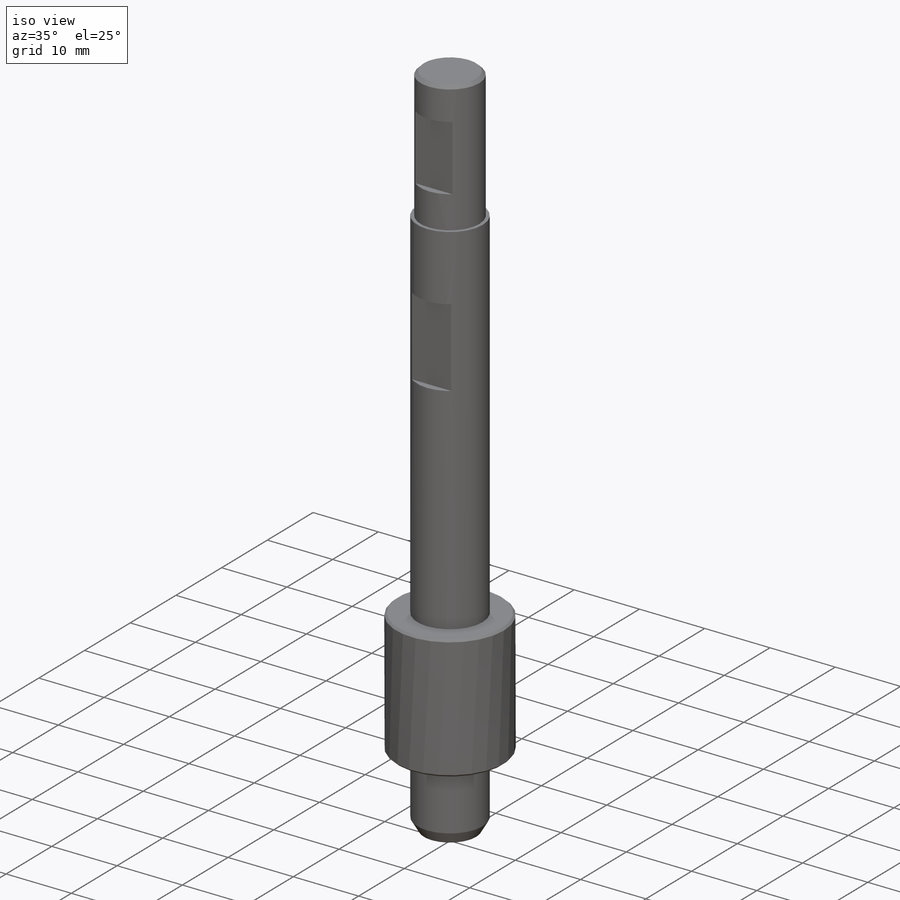
[diagram: iso view]
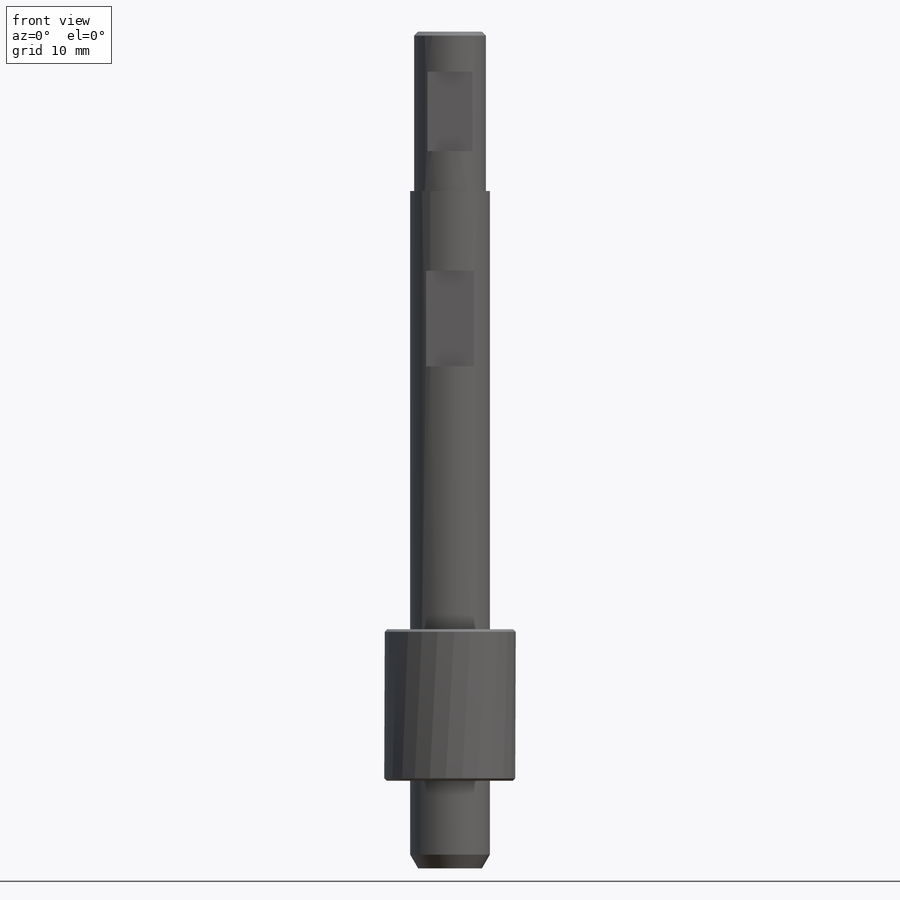
[diagram: front view]
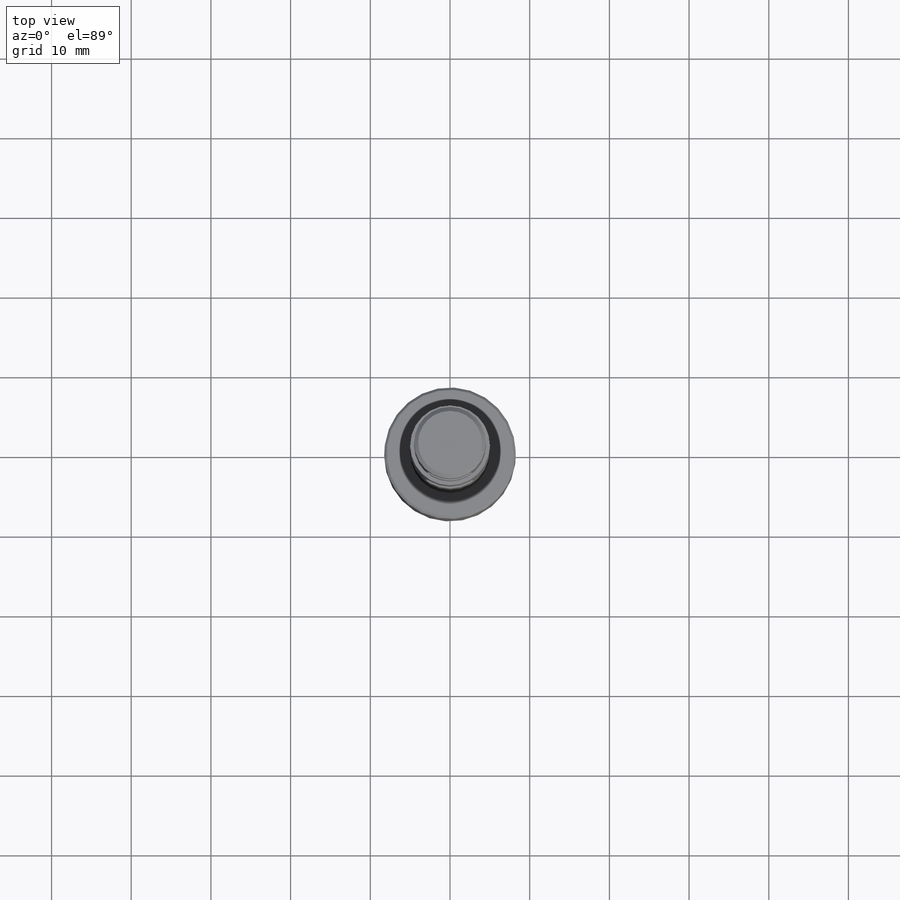
[diagram: top view]
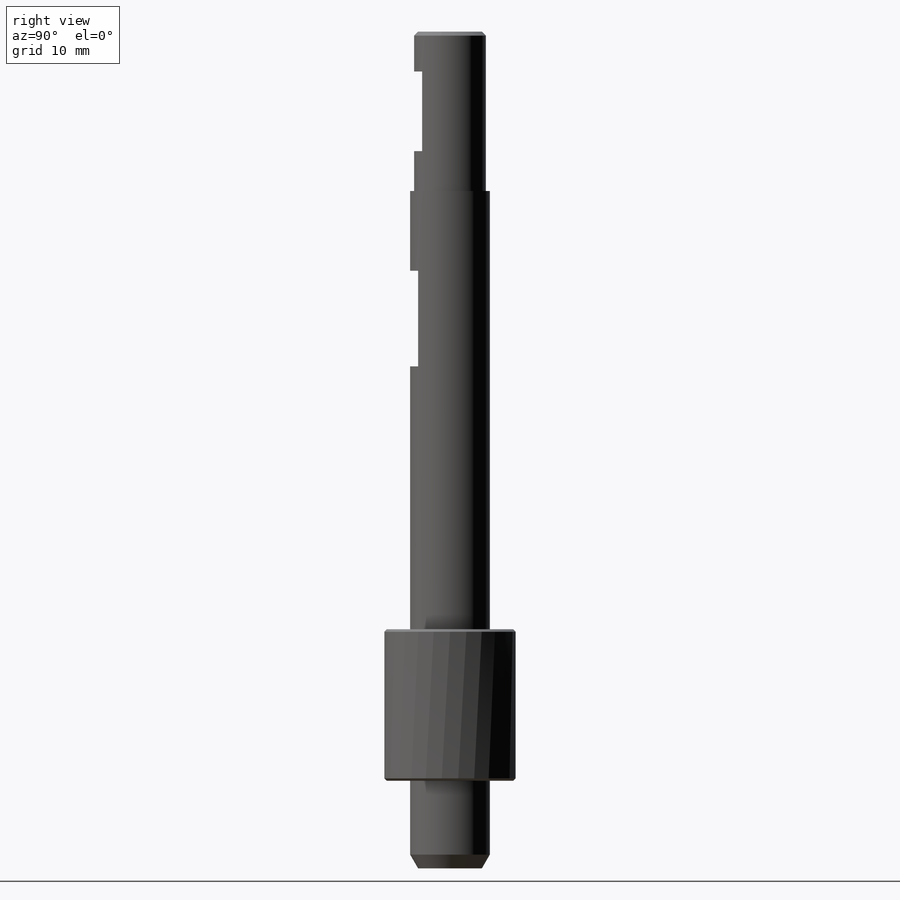
[diagram: right view]
SOLIDWORKS PART (.sldprt)
format: sldprt  version: not decoded by parser v0  size: 177,664 bytes
history: native  units: mm
features: plane x4, sketch x4, chamfer x3, cut_extrude x3, material x1, revolve x1 (+13 scaffold rows collapsed)
feature tree (29):
  scaffold x13  (default folders/planes/origin — collapsed)
  material  "1.0501 (C35)"
  plane  "Plan de face"
  plane  "Plan de dessus"
  plane  "Plan de droite"
  sketch  "Esquisse1"  dims[D1=5.0mm D2=5.0mm D3=8.25mm D4=11.0mm D5=19.0mm D6=75.0mm]
  revolve  "Révolution1"  Angle=360deg
  chamfer  "Chanfrein1"  Distance=1mm Angle=60deg
  plane  "Plan1"  Offset=5mm
  sketch  "Esquisse3"  dims[D1=36.0mm D2=12.0mm]
  cut_extrude  "Enlèv. mat.-Extru.1"  Depth=1mm
  sketch  "Esquisse4"  dims[D1=~4.237206mm]
  cut_extrude  "Enlèv. mat.-Extru.2"  Depth=20mm
  sketch  "Esquisse5"  dims[D1=10.0mm D2=10.0mm]
  cut_extrude  "Enlèv. mat.-Extru.3"  Depth=1.5mm
  chamfer  "Chanfrein2"  Distance=0.5mm Angle=45deg
  chamfer  "Chanfrein3"  Distance=0.3mm Angle=45deg
decode coverage: 11 of 11 modeling features carry decoded parameters
note: ~ marks probable driven/reference dimensions
note: suppression state not decoded; provenance and decode notes live in map.json
